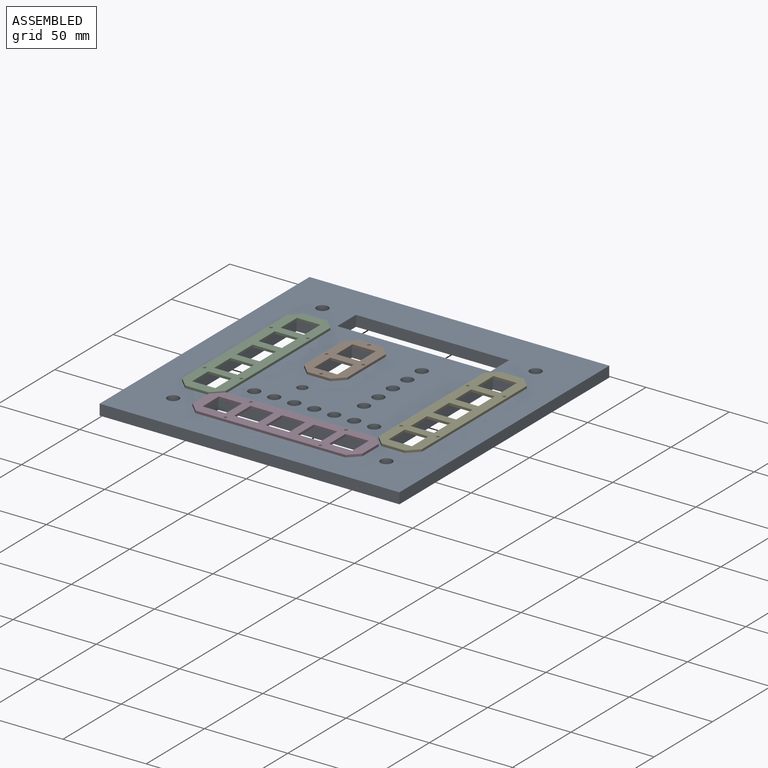
[diagram: assembled view]
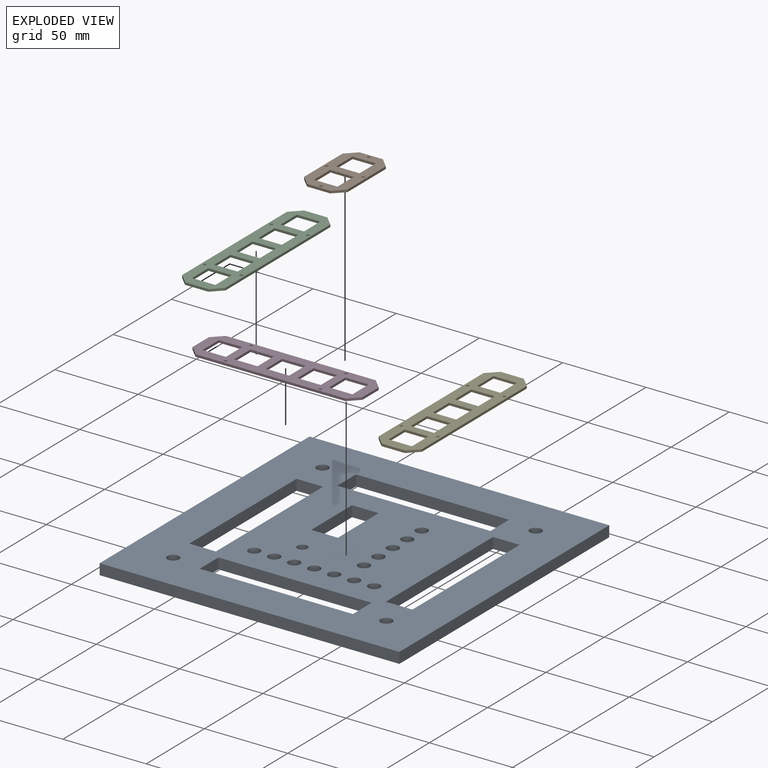
[diagram: exploded view]
GUIDED TOUR — FREECAD ASSEMBLY "Multi-MFD"

This assembly has 5 components, labeled P0..P4 below (a component is one placed body or linked part; the same part can appear more than once), held together by 0 modeled joints plus 5 derived contact edges. A joint is a constraint between two components; its type names the relative motion it leaves free:
  CONTACT — a derived adjacency edge — the two components touch in the source model (clearance under 2% of the assembly's diagonal); it is measured from the geometry, not a modeled constraint.
Axis/direction vectors are unit vectors and 'through' points are millimeter coordinates, both in the assembly's world frame.

MATES
  1. CONTACT "contact_0_1": P0 <-> P1, contact direction (0.000, 0.000, 1.000) through (-11.50, 2.00, 0.00) mm (derived from contact, not a modeled constraint)
  2. CONTACT "contact_0_2": P0 <-> P2, contact direction (0.000, 0.000, 1.000) through (-51.50, -45.50, 0.00) mm (derived from contact, not a modeled constraint)
  3. CONTACT "contact_0_3": P0 <-> P3, contact direction (0.000, 0.000, 1.000) through (45.50, -51.50, 0.00) mm (derived from contact, not a modeled constraint)
  4. CONTACT "contact_2_3": P2 <-> P3, contact direction (1.000, 0.000, 0.000) through (-51.50, -51.50, 0.00) mm (derived from contact, not a modeled constraint)
  5. CONTACT "contact_3_4": P3 <-> P4, contact direction (1.000, 0.000, 0.000) through (51.50, -51.50, 0.00) mm (derived from contact, not a modeled constraint)

ASSEMBLY ORDER
  1. P4 — the base component [order verified]
  2. P3 [order verified]
  3. P2 [order verified]
  4. P1 [order verified]
  5. P0 [order verified]
Order-tag legend:
  [order verified] — this step's position reverses a verified removal order: the component was checked to insert without passing through the ones already placed.

Of the 5 components, 5 carry a construction recipe — the FreeCAD feature program (sketches with constraints, then the solid features that consume them) that regenerates the part from scratch, quoted from this document or from the linked companion document it references; the rest are supplied as boundary geometry only. The tour below walks the components in assembly order: each is shown spotlighted twice — in the assembled view, then in the exploded view, where a leader line traces a displaced component back to its assembled socket (components that stay in place when exploded have no leader line; saturated green if recipe-attached, orange if geometry-only; every other component desaturated gray) — followed by its recipe or geometry summary and the mates that hold it.
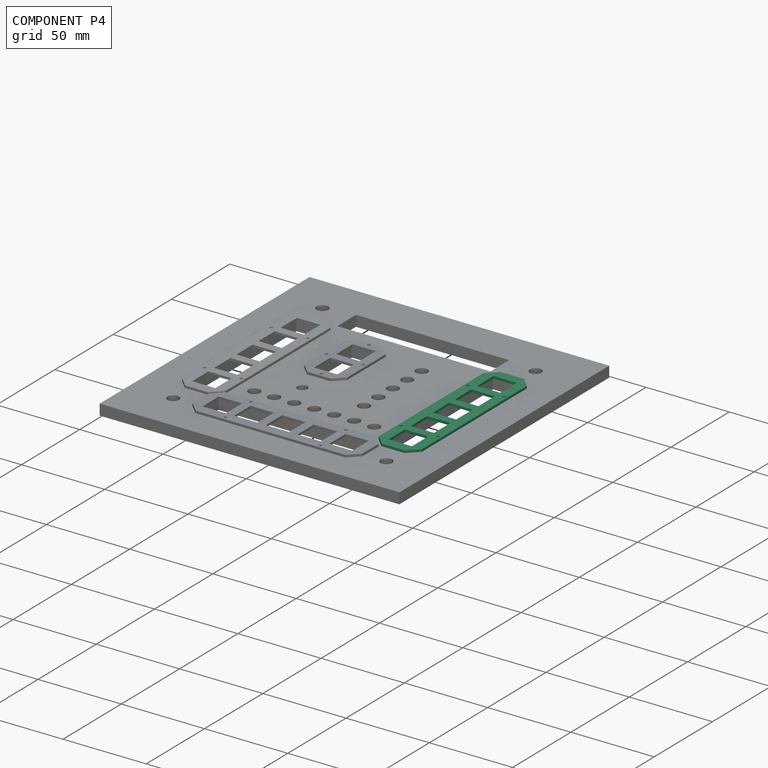
[diagram: component P4 — assembled]
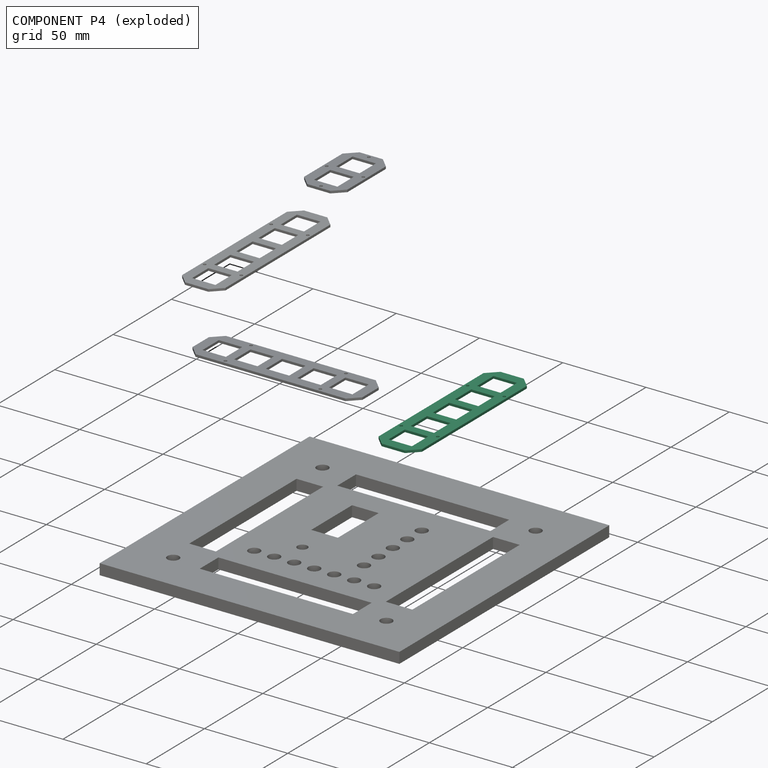
[diagram: component P4 — exploded]
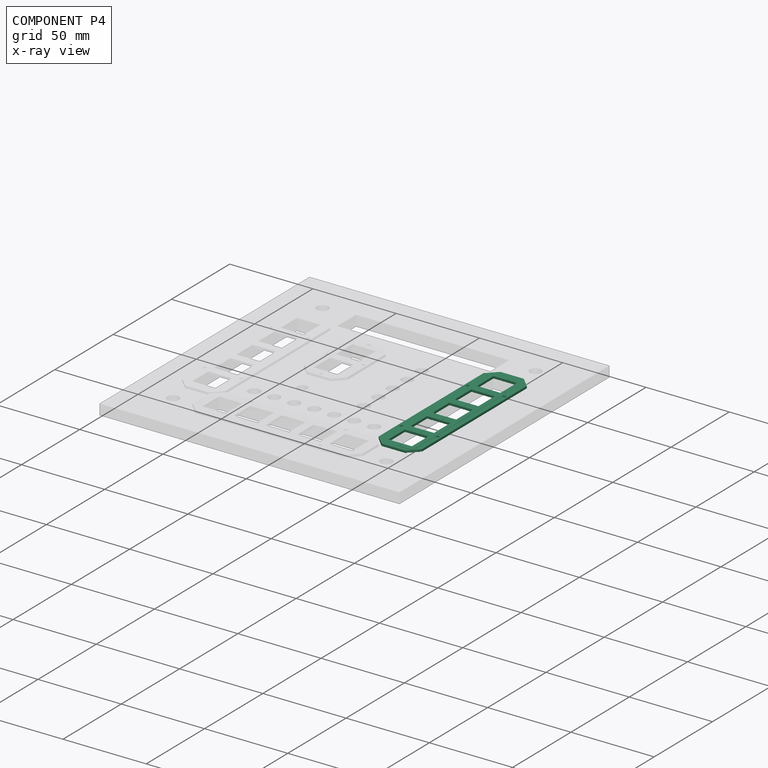
[diagram: component P4 — x-ray view]
COMPONENT P4 — same part as P2; its construction recipe is shown at P2.
Held by: resting contact with P3 (derived edge).
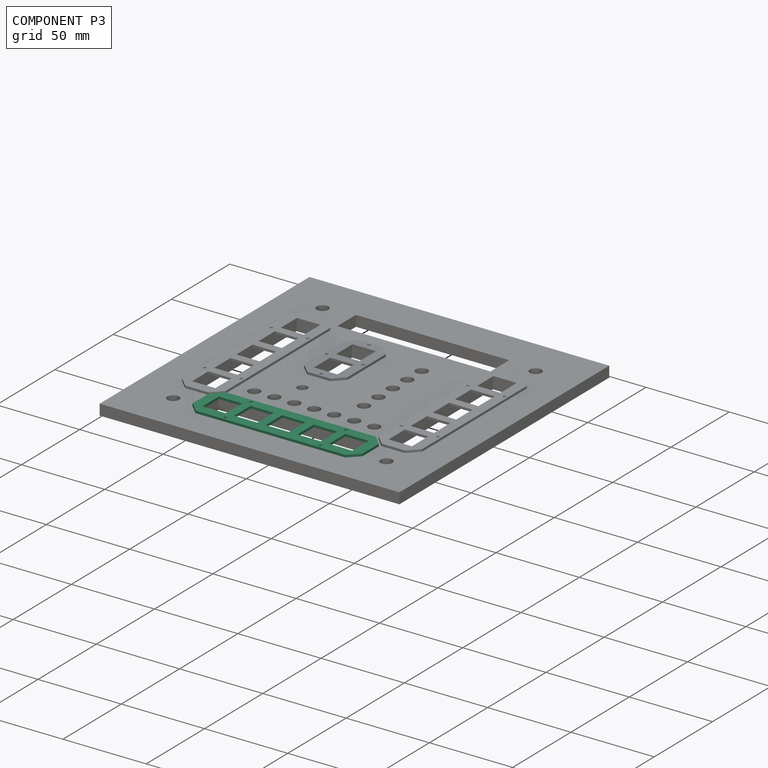
[diagram: component P3 — assembled]
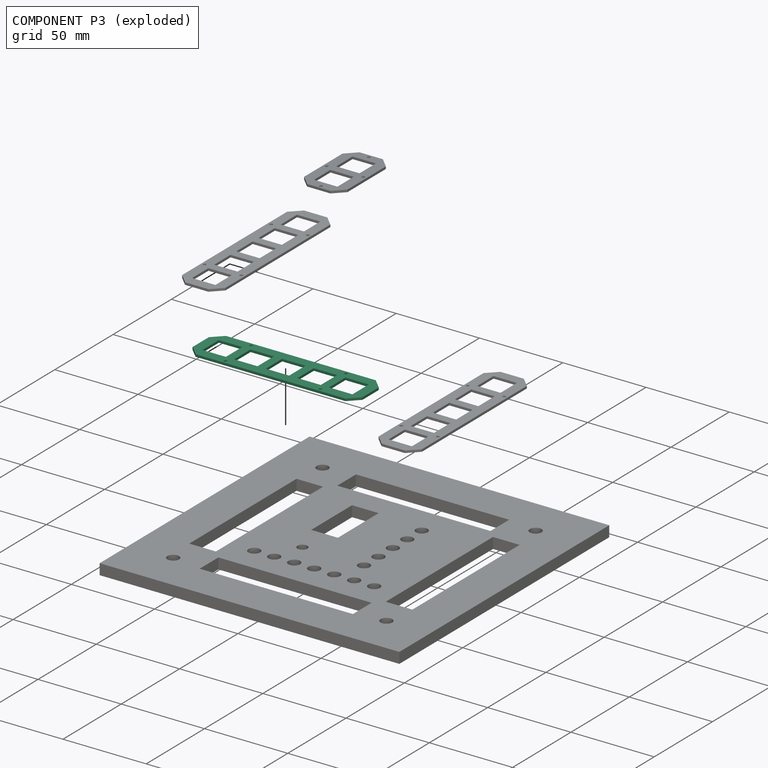
[diagram: component P3 — exploded]
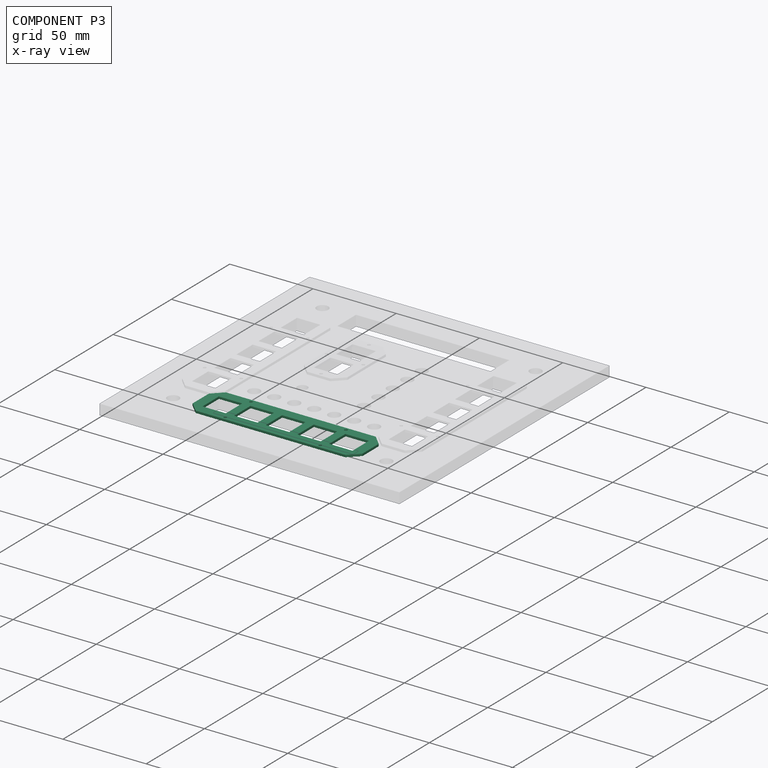
[diagram: component P3 — x-ray view]
COMPONENT P3 — same part as P2; its construction recipe is shown at P2.
Held by: resting contact with P0 (derived edge); resting contact with P2 (derived edge); resting contact with P4 (derived edge).
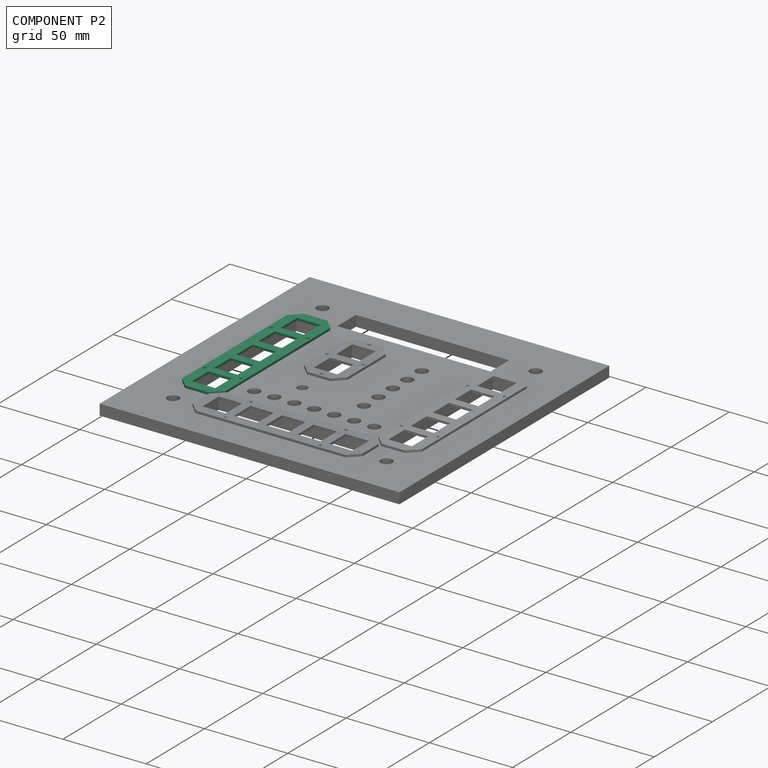
[diagram: component P2 — assembled]
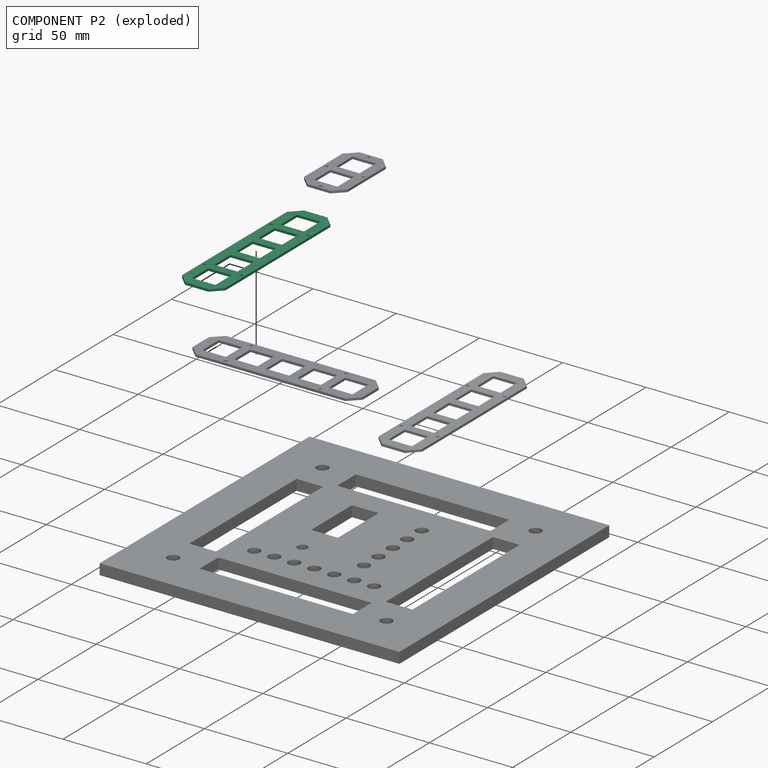
[diagram: component P2 — exploded]
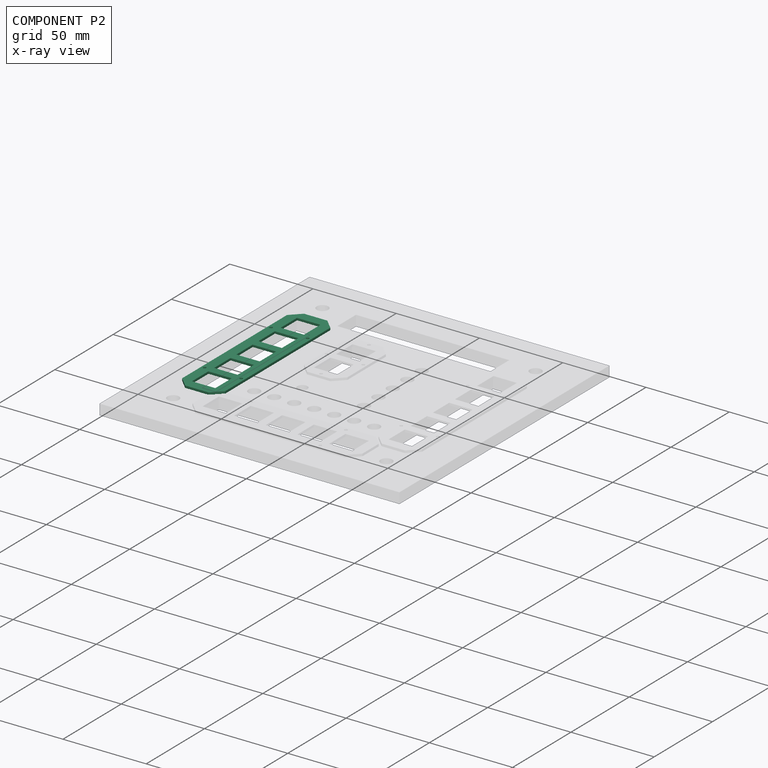
[diagram: component P2 — x-ray view]
COMPONENT P2 — recipe-attached ("ButtonPlateBody001", modeled in this document).
Held by: resting contact with P0 (derived edge); resting contact with P3 (derived edge).
Construction recipe (the document's own serialized feature program — sketch geometry with constraints, then the solid features built on it; lengths are millimeters unless a unit is written):

FEATURE [PartDesign::CoordinateSystem] LCS_0003
  AttacherType = Attacher::AttachEngine3D
  MapMode = 2
  Support = -> [X_Axis004]
FEATURE [Sketcher::SketchObject] Sketch001  label="ButtonPlateSketch"
  FullyConstrained = true
  MapMode = 5
  Support = -> [DatumPlane001]
  sketch-geometry (63):
    g0: LineSegment StartX=-45 StartY=72 StartZ=0 EndX=45 EndY=72 EndZ=0
    g1: LineSegment StartX=51 StartY=66 StartZ=0 EndX=51 EndY=52 EndZ=0
    g2: LineSegment StartX=45 StartY=46 StartZ=0 EndX=-45 EndY=46 EndZ=0
    g3: LineSegment StartX=-51 StartY=52 StartZ=0 EndX=-51 EndY=66 EndZ=0
    g4: LineSegment StartX=-51 StartY=66 StartZ=0 EndX=-45 EndY=66 EndZ=0
    g5: LineSegment StartX=-45 StartY=66 StartZ=0 EndX=-31 EndY=66 EndZ=0
    g6: LineSegment StartX=-31 StartY=66 StartZ=0 EndX=-26 EndY=66 EndZ=0
    g7: LineSegment StartX=-26 StartY=66 StartZ=0 EndX=-12 EndY=66 EndZ=0
    g8: LineSegment StartX=-12 StartY=66 StartZ=0 EndX=-7 EndY=66 EndZ=0
    g9: LineSegment StartX=-7 StartY=66 StartZ=0 EndX=7 EndY=66 EndZ=0
    g10: LineSegment StartX=7 StartY=66 StartZ=0 EndX=12 EndY=66 EndZ=0
    g11: LineSegment StartX=12 StartY=66 StartZ=0 EndX=26 EndY=66 EndZ=0
    g12: LineSegment StartX=26 StartY=66 StartZ=0 EndX=31 EndY=66 EndZ=0
    g13: LineSegment StartX=31 StartY=66 StartZ=0 EndX=45 EndY=66 EndZ=0
    g14: LineSegment StartX=45 StartY=66 StartZ=0 EndX=51 EndY=66 EndZ=0
    g15: LineSegment StartX=-51 StartY=52 StartZ=0 EndX=-45 EndY=52 EndZ=0
    g16: LineSegment StartX=-45 StartY=52 StartZ=0 EndX=-31 EndY=52 EndZ=0
    g17: LineSegment StartX=-31 StartY=52 StartZ=0 EndX=-26 EndY=52 EndZ=0
    g18: LineSegment StartX=-26 StartY=52 StartZ=0 EndX=-12 EndY=52 EndZ=0
    g19: LineSegment StartX=-12 StartY=52 StartZ=0 EndX=-7 EndY=52 EndZ=0
    g20: LineSegment StartX=-7 StartY=52 StartZ=0 EndX=7 EndY=52 EndZ=0
    g21: LineSegment StartX=7 StartY=52 StartZ=0 EndX=12 EndY=52 EndZ=0
    g22: LineSegment StartX=12 StartY=52 StartZ=0 EndX=26 EndY=52 EndZ=0
    g23: LineSegment StartX=26 StartY=52 StartZ=0 EndX=31 EndY=52 EndZ=0
    g24: LineSegment StartX=31 StartY=52 StartZ=0 EndX=45 EndY=52 EndZ=0
    g25: LineSegment StartX=45 StartY=52 StartZ=0 EndX=51 EndY=52 EndZ=0
    g26: LineSegment StartX=-45 StartY=72 StartZ=0 EndX=-45 EndY=66 EndZ=0
    g27: LineSegment StartX=-45 StartY=52 StartZ=0 EndX=-45 EndY=46 EndZ=0
    g28: LineSegment StartX=45 StartY=52 StartZ=0 EndX=45 EndY=46 EndZ=0
    g29: LineSegment StartX=45 StartY=66 StartZ=0 EndX=45 EndY=72 EndZ=0
    g30: LineSegment StartX=-45 StartY=66 StartZ=0 EndX=-31 EndY=66 EndZ=0
    g31: LineSegment StartX=-31 StartY=66 StartZ=0 EndX=-31 EndY=52 EndZ=0
    g32: LineSegment StartX=-31 StartY=52 StartZ=0 EndX=-45 EndY=52 EndZ=0
    g33: LineSegment StartX=-45 StartY=52 StartZ=0 EndX=-45 EndY=66 EndZ=0
    g34: LineSegment StartX=-26 StartY=66 StartZ=0 EndX=-12 EndY=66 EndZ=0
    g35: LineSegment StartX=-12 StartY=66 StartZ=0 EndX=-12 EndY=52 EndZ=0
    g36: LineSegment StartX=-12 StartY=52 StartZ=0 EndX=-26 EndY=52 EndZ=0
    g37: LineSegment StartX=-26 StartY=52 StartZ=0 EndX=-26 EndY=66 EndZ=0
    g38: LineSegment StartX=-7 StartY=66 StartZ=0 EndX=7 EndY=66 EndZ=0
    g39: LineSegment StartX=7 StartY=66 StartZ=0 EndX=7 EndY=52 EndZ=0
    g40: LineSegment StartX=7 StartY=52 StartZ=0 EndX=-7 EndY=52 EndZ=0
    g41: LineSegment StartX=-7 StartY=52 StartZ=0 EndX=-7 EndY=66 EndZ=0
    g42: LineSegment StartX=12 StartY=66 StartZ=0 EndX=26 EndY=66 EndZ=0
    g43: LineSegment StartX=26 StartY=66 StartZ=0 EndX=26 EndY=52 EndZ=0
    g44: LineSegment StartX=26 StartY=52 StartZ=0 EndX=12 EndY=52 EndZ=0
    g45: LineSegment StartX=12 StartY=52 StartZ=0 EndX=12 EndY=66 EndZ=0
    g46: LineSegment StartX=31 StartY=66 StartZ=0 EndX=45 EndY=66 EndZ=0
    g47: LineSegment StartX=45 StartY=66 StartZ=0 EndX=45 EndY=52 EndZ=0
    g48: LineSegment StartX=45 StartY=52 StartZ=0 EndX=31 EndY=52 EndZ=0
    g49: LineSegment StartX=31 StartY=52 StartZ=0 EndX=31 EndY=66 EndZ=0
    g50: LineSegment StartX=-45 StartY=72 StartZ=0 EndX=-51 EndY=66 EndZ=0
    g51: LineSegment StartX=-51 StartY=52 StartZ=0 EndX=-45 EndY=46 EndZ=0
    g52: LineSegment StartX=45 StartY=46 StartZ=0 EndX=51 EndY=52 EndZ=0
    g53: LineSegment StartX=51 StartY=66 StartZ=0 EndX=45 EndY=72 EndZ=0
    g54: Circle CenterX=-28.5 CenterY=48 CenterZ=0 NormalX=0 NormalY=0 NormalZ=1 AngleXU=0 Radius=0.9
    g55: Circle CenterX=-28.5 CenterY=70 CenterZ=0 NormalX=0 NormalY=0 NormalZ=1 AngleXU=0 Radius=0.9
    g56: Circle CenterX=28.5 CenterY=70 CenterZ=0 NormalX=0 NormalY=0 NormalZ=1 AngleXU=0 Radius=0.9
    g57: Circle CenterX=28.5 CenterY=48 CenterZ=0 NormalX=0 NormalY=0 NormalZ=1 AngleXU=0 Radius=0.9
    g58: LineSegment StartX=-45 StartY=48 StartZ=0 EndX=45 EndY=48 EndZ=0
    g59: LineSegment StartX=-45 StartY=70 StartZ=0 EndX=45 EndY=70 EndZ=0
    g60: LineSegment StartX=-28.5 StartY=72 StartZ=0 EndX=-28.5 EndY=46 EndZ=0
    g61: LineSegment StartX=28.5 StartY=72 StartZ=0 EndX=28.5 EndY=46 EndZ=0
    g62: LineSegment StartX=38 StartY=66 StartZ=0 EndX=38 EndY=52 EndZ=0
  constraints (174):
    c: Horizontal(g0)
    c: Vertical(g1)
    c: Vertical(g3)
    c: Horizontal(g4)
    c: Coincident(g4,g5)
    c: Horizontal(g5)
    c: Coincident(g5,g6)
    c: Horizontal(g6)
    c: Coincident(g6,g7)
    c: Horizontal(g7)
    c: Coincident(g7,g8)
    c: Horizontal(g8)
    c: Coincident(g8,g9)
    c: Horizontal(g9)
    c: Coincident(g9,g10)
    c: Horizontal(g10)
    c: Coincident(g10,g11)
    c: Horizontal(g11)
    c: Coincident(g11,g12)
    c: Horizontal(g12)
    c: Coincident(g12,g13)
    c: Horizontal(g13)
    c: Coincident(g13,g14)
    c: Horizontal(g14)
    c: Equal(g5,g7)
    c: Equal(g7,g9)
    c: Equal(g9,g11)
    c: Equal(g11,g13)
    c: Equal(g6,g8)
    c: Equal(g8,g10)
    c: Equal(g10,g12)
    c: Horizontal(g15)
    c: Coincident(g15,g16)
    c: Horizontal(g16)
    c: Coincident(g16,g17)
    c: Horizontal(g17)
    c: Coincident(g17,g18)
    c: Horizontal(g18)
    c: Coincident(g18,g19)
    c: Horizontal(g19)
    c: Coincident(g19,g20)
    c: Horizontal(g20)
    c: Coincident(g20,g21)
    c: Horizontal(g21)
    c: Coincident(g21,g22)
    c: Horizontal(g22)
    c: Coincident(g22,g23)
    c: Horizontal(g23)
    c: Coincident(g23,g24)
    c: Horizontal(g24)
    c: Coincident(g24,g25)
    c: Horizontal(g25)
    c: Equal(g16,g18)
    c: Equal(g18,g20)
    c: Equal(g20,g22)
    c: Equal(g22,g24)
    c: Equal(g17,g19)
    c: Equal(g19,g21)
    c: Equal(g21,g23)
    c: Equal(g6,g17) = 5
    c: Equal(g5,g16) = 14
    c: Vertical(g26)
    c: Vertical(g27)
    c: Coincident(g26,g4)
    c: Coincident(g27,g15)
    c: Coincident(g28,g24)
    c: Vertical(g28)
    c: Coincident(g29,g13)
    c: Vertical(g29)
    c: DistanceX(g6,g6) = 5
    c: DistanceY(g15,g4) = 14
    c: DistanceY(g29,g29) = 6
    c: Equal(g4,g26)
    c: Equal(g25,g28)
    c: Equal(g14,g29)
    c: Equal(g15,g4)
    c: Coincident(g30,g31)
    c: Coincident(g31,g32)
    c: Coincident(g32,g33)
    c: Coincident(g33,g30)
    c: Horizontal(g30)
    c: Horizontal(g32)
    c: Vertical(g31)
    c: Vertical(g33)
    c: Coincident(g30,g4)
    c: Coincident(g31,g16)
    c: Coincident(g34,g35)
    c: Coincident(g35,g36)
    c: Coincident(g36,g37)
    c: Coincident(g37,g34)
    c: Horizontal(g34)
    c: Horizontal(g36)
    c: Vertical(g35)
    c: Vertical(g37)
    c: Coincident(g34,g6)
    c: Coincident(g35,g18)
    c: Coincident(g38,g39)
    c: Coincident(g39,g40)
    c: Coincident(g40,g41)
    c: Coincident(g41,g38)
    c: Horizontal(g38)
    c: Horizontal(g40)
    c: Vertical(g39)
    c: Vertical(g41)
    c: Coincident(g38,g8)
    c: Coincident(g39,g20)
    c: Coincident(g42,g43)
    c: Coincident(g43,g44)
    c: Coincident(g44,g45)
    c: Coincident(g45,g42)
    c: Horizontal(g42)
    c: Horizontal(g44)
    c: Vertical(g43)
    c: Vertical(g45)
    c: Coincident(g42,g10)
    c: Coincident(g43,g22)
    c: Coincident(g46,g47)
    c: Coincident(g47,g48)
    c: Coincident(g48,g49)
    c: Coincident(g49,g46)
    c: Horizontal(g46)
    c: Horizontal(g48)
    c: Vertical(g47)
    c: Vertical(g49)
    c: Coincident(g46,g12)
    c: Coincident(g47,g24)
    c: Equal(g32,g33)
    c: Coincident(g1,g25)
    c: Coincident(g2,g28)
    c: Coincident(g1,g14)
    c: Coincident(g0,g29)
    c: Coincident(g0,g26)
    c: Coincident(g3,g4)
    c: Coincident(g3,g15)
    c: Coincident(g2,g27)
    c: Coincident(g50,g0)
    c: Coincident(g51,g3)
    c: Coincident(g51,g2)
    c: Coincident(g52,g2)
    c: Coincident(g52,g1)
    c: Coincident(g53,g1)
    c: Coincident(g53,g0)
    c: Coincident(g50,g3)
    c: Symmetric(g2,g2,g-2)
    c: DistanceY(g-1,g0) = 72
    c: PointOnObject(g58,g27)
    c: PointOnObject(g58,g28)
    c: Horizontal(g58)
    c: PointOnObject(g59,g26)
    c: PointOnObject(g59,g29)
    c: Horizontal(g59)
    c: PointOnObject(g55,g59)
    c: PointOnObject(g56,g59)
    c: PointOnObject(g54,g58)
    c: DistanceY(g58,g47) = 4
    c: Diameter(g54) = 1.8
    c: Diameter(g57) = 1.8
    c: Diameter(g56) = 1.8
    c: Diameter(g55) = 1.8
    c: DistanceY(g46,g59) = 4
    c: Symmetric(g54,g57,g-2)
    c: PointOnObject(g60,g0)
    c: PointOnObject(g60,g2)
    c: Vertical(g60)
    c: PointOnObject(g61,g0)
    c: Vertical(g61)
    c: PointOnObject(g57,g61)
    c: PointOnObject(g55,g60)
    c: PointOnObject(g56,g61)
    c: Symmetric(g60,g61,g-2)
    c: DistanceX(g60,g-1) = 28.5
    c: PointOnObject(g62,g46)
    c: PointOnObject(g62,g48)
    c: Symmetric(g46,g46,g62)
FEATURE [PartDesign::FeatureBase] BaseFeature001
  BaseFeature = -> DatumPlane001
FEATURE [PartDesign::Pad] Pad001  label="FiveButtonPlatePad"
  BaseFeature = -> BaseFeature001
  Direction = (1,1,1)
  Length = 1.4
  Length2 = 100
  Profile = -> Sketch001
  Type = 0
FEATURE [PartDesign::Body] ButtonPlateBody
  BaseFeature = -> DatumPlane001
  Group = -> [BaseFeature001,LCS_0003,Sketch001,Pad001]
  Origin = -> Origin004
  Tip = -> Pad001
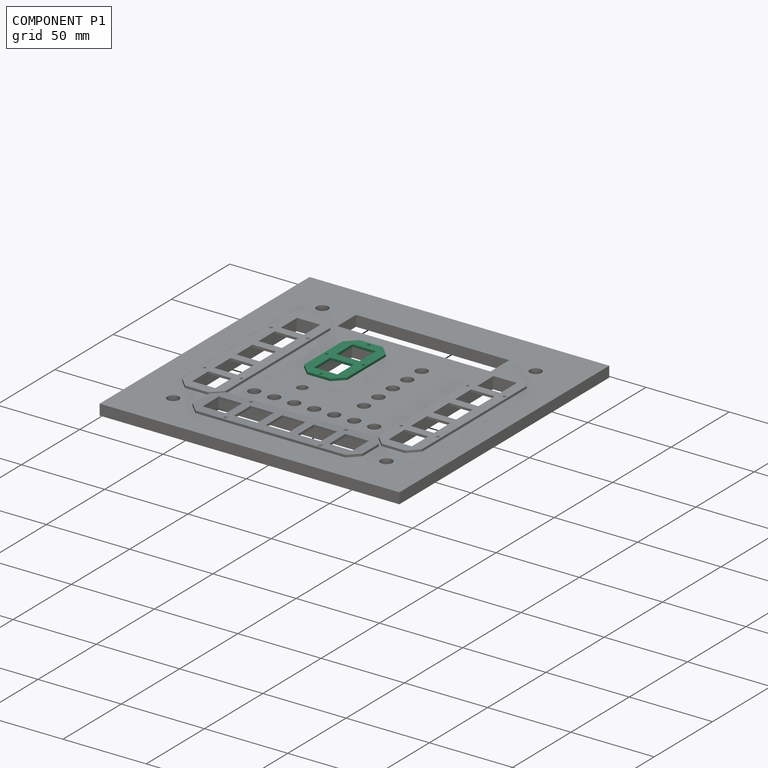
[diagram: component P1 — assembled]
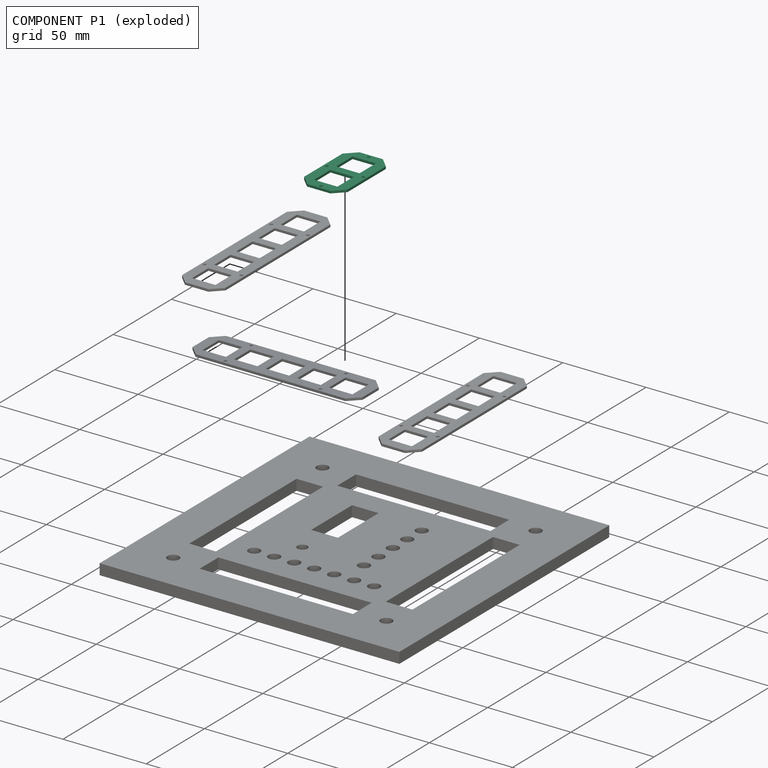
[diagram: component P1 — exploded]
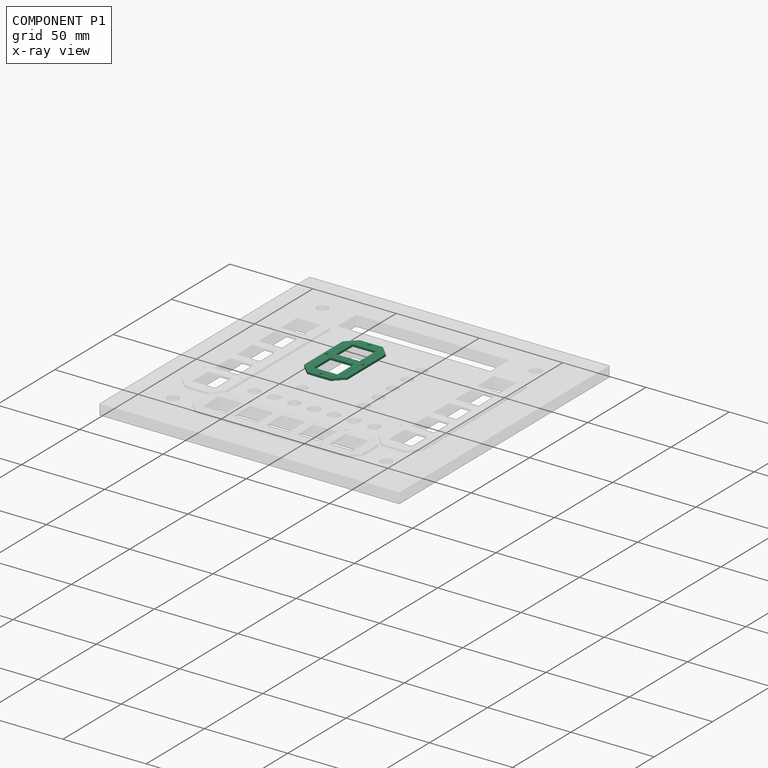
[diagram: component P1 — x-ray view]
COMPONENT P1 — recipe-attached ("ArmingPlate", modeled in this document).
Held by: resting contact with P0 (derived edge).
Construction recipe (the document's own serialized feature program — sketch geometry with constraints, then the solid features built on it; lengths are millimeters unless a unit is written):

FEATURE [Sketcher::SketchObject] Sketch003
  FullyConstrained = true
  MapMode = 5
  Support = -> [DatumPlane001]
  sketch-geometry (36):
    g0: LineSegment StartX=-26 StartY=41.5 StartZ=0 EndX=-26 EndY=35.5 EndZ=0
    g1: LineSegment StartX=-26 StartY=35.5 StartZ=0 EndX=-26 EndY=21.5 EndZ=0
    g2: LineSegment StartX=-26 StartY=21.5 StartZ=0 EndX=-26 EndY=16.5 EndZ=0
    g3: LineSegment StartX=-26 StartY=16.5 StartZ=0 EndX=-26 EndY=2.5 EndZ=0
    g4: LineSegment StartX=-26 StartY=2.5 StartZ=0 EndX=-26 EndY=-3.5 EndZ=0
    g5: LineSegment StartX=-12 StartY=41.5 StartZ=0 EndX=-12 EndY=35.5 EndZ=0
    g6: LineSegment StartX=-12 StartY=35.5 StartZ=0 EndX=-12 EndY=21.5 EndZ=0
    g7: LineSegment StartX=-12 StartY=21.5 StartZ=0 EndX=-12 EndY=16.5 EndZ=0
    g8: LineSegment StartX=-12 StartY=16.5 StartZ=0 EndX=-12 EndY=2.5 EndZ=0
    g9: LineSegment StartX=-12 StartY=2.5 StartZ=0 EndX=-12 EndY=-3.5 EndZ=0
    g10: LineSegment StartX=-26 StartY=41.5 StartZ=0 EndX=-12 EndY=41.5 EndZ=0
    g11: LineSegment StartX=-6 StartY=35.5 StartZ=0 EndX=-6 EndY=2.5 EndZ=0
    g12: LineSegment StartX=-12 StartY=-3.5 StartZ=0 EndX=-26 EndY=-3.5 EndZ=0
    g13: LineSegment StartX=-32 StartY=2.5 StartZ=0 EndX=-32 EndY=35.5 EndZ=0
    g14: LineSegment StartX=-26 StartY=35.5 StartZ=0 EndX=-32 EndY=35.5 EndZ=0
    g15: LineSegment StartX=-12 StartY=35.5 StartZ=0 EndX=-6 EndY=35.5 EndZ=0
    g16: LineSegment StartX=-12 StartY=2.5 StartZ=0 EndX=-6 EndY=2.5 EndZ=0
    g17: LineSegment StartX=-26 StartY=2.5 StartZ=0 EndX=-32 EndY=2.5 EndZ=0
    g18: LineSegment StartX=-26 StartY=41.5 StartZ=0 EndX=-32 EndY=35.5 EndZ=0
    g19: LineSegment StartX=-12 StartY=41.5 StartZ=0 EndX=-6 EndY=35.5 EndZ=0
    g20: LineSegment StartX=-32 StartY=2.5 StartZ=0 EndX=-26 EndY=-3.5 EndZ=0
    g21: LineSegment StartX=-12 StartY=-3.5 StartZ=0 EndX=-6 EndY=2.5 EndZ=0
    g22: LineSegment StartX=-12 StartY=16.5 StartZ=0 EndX=-26 EndY=16.5 EndZ=0
    g23: LineSegment StartX=-26 StartY=16.5 StartZ=0 EndX=-26 EndY=2.5 EndZ=0
    g24: LineSegment StartX=-26 StartY=2.5 StartZ=0 EndX=-12 EndY=2.5 EndZ=0
    g25: LineSegment StartX=-12 StartY=2.5 StartZ=0 EndX=-12 EndY=16.5 EndZ=0
    g26: LineSegment StartX=-26 StartY=21.5 StartZ=0 EndX=-12 EndY=21.5 EndZ=0
    g27: LineSegment StartX=-12 StartY=21.5 StartZ=0 EndX=-12 EndY=35.5 EndZ=0
    g28: LineSegment StartX=-12 StartY=35.5 StartZ=0 EndX=-26 EndY=35.5 EndZ=0
    g29: LineSegment StartX=-26 StartY=35.5 StartZ=0 EndX=-26 EndY=21.5 EndZ=0
    g30: Circle CenterX=-19 CenterY=-1.5 CenterZ=0 NormalX=0 NormalY=0 NormalZ=1 AngleXU=0 Radius=0.9
    g31: Circle CenterX=-19 CenterY=39.5 CenterZ=0 NormalX=0 NormalY=0 NormalZ=1 AngleXU=0 Radius=0.9
    g32: Circle CenterX=-30 CenterY=19 CenterZ=0 NormalX=0 NormalY=0 NormalZ=1 AngleXU=0 Radius=0.9
    g33: Circle CenterX=-8 CenterY=19 CenterZ=0 NormalX=0 NormalY=0 NormalZ=1 AngleXU=0 Radius=0.9
    g34: LineSegment StartX=-19 StartY=41.5 StartZ=0 EndX=-19 EndY=-3.5 EndZ=0
    g35: LineSegment StartX=-32 StartY=19 StartZ=0 EndX=-6 EndY=19 EndZ=0
  constraints (98):
    c: Vertical(g0)
    c: Coincident(g0,g1)
    c: Vertical(g1)
    c: Coincident(g1,g2)
    c: Vertical(g2)
    c: Coincident(g2,g3)
    c: Vertical(g3)
    c: Coincident(g3,g4)
    c: Vertical(g4)
    c: Vertical(g5)
    c: Coincident(g5,g6)
    c: Vertical(g6)
    c: Coincident(g6,g7)
    c: Vertical(g7)
    c: Coincident(g7,g8)
    c: Vertical(g8)
    c: Coincident(g9,g8)
    c: Vertical(g9)
    c: Horizontal(g10)
    c: Horizontal(g12)
    c: Vertical(g11)
    c: Vertical(g13)
    c: Equal(g1,g6)
    c: Equal(g6,g8)
    c: Equal(g8,g3)
    c: Equal(g2,g7)
    c: Equal(g4,g9)
    c: Equal(g9,g5)
    c: Coincident(g14,g0)
    c: Horizontal(g14)
    c: Coincident(g15,g5)
    c: Horizontal(g15)
    c: Coincident(g16,g8)
    c: Horizontal(g16)
    c: Coincident(g17,g3)
    c: Horizontal(g17)
    c: Equal(g15,g14)
    c: Equal(g14,g0)
    c: DistanceX(g14,g14) = 6
    c: DistanceY(g1,g1) = 14
    c: Coincident(g10,g0)
    c: Coincident(g13,g14)
    c: Coincident(g18,g10)
    c: Coincident(g18,g13)
    c: Coincident(g10,g5)
    c: Coincident(g19,g10)
    c: Coincident(g19,g11)
    c: Coincident(g11,g16)
    c: Coincident(g12,g9)
    c: Coincident(g12,g4)
    c: Coincident(g13,g17)
    c: Coincident(g20,g13)
    c: Coincident(g20,g12)
    c: Coincident(g21,g12)
    c: Coincident(g21,g11)
    c: Coincident(g22,g23)
    c: Coincident(g23,g24)
    c: Coincident(g24,g25)
    c: Coincident(g25,g22)
    c: Horizontal(g22)
    c: Horizontal(g24)
    c: Vertical(g23)
    c: Vertical(g25)
    c: Coincident(g22,g7)
    c: Coincident(g23,g3)
    c: Coincident(g26,g27)
    c: Coincident(g27,g28)
    c: Coincident(g28,g29)
    c: Coincident(g29,g26)
    c: Horizontal(g26)
    c: Horizontal(g28)
    c: Vertical(g27)
    c: Vertical(g29)
    c: Coincident(g26,g1)
    c: Coincident(g27,g5)
    c: DistanceY(g7,g7) = 5
    c: DistanceX(g10,g10) = 14
    c: DistanceX(g11,g-1) = 6
    c: Diameter(g31) = 1.8
    c: Diameter(g32) = 1.8
    c: Diameter(g30) = 1.8
    c: Diameter(g33) = 1.8
    c: PointOnObject(g34,g10)
    c: PointOnObject(g35,g13)
    c: PointOnObject(g35,g11)
    c: Symmetric(g13,g13,g35)
    c: Symmetric(g10,g10,g34)
    c: PointOnObject(g33,g35)
    c: PointOnObject(g32,g35)
    c: PointOnObject(g31,g34)
    c: PointOnObject(g30,g34)
    c: DistanceY(g34,g30) = 2
    c: DistanceX(g33,g35) = 2
    c: DistanceX(g35,g32) = 2
    c: DistanceY(g31,g34) = 2
    c: Coincident(g11,g15)
    c: PointOnObject(g34,g12)
    c: DistanceY(g-1,g35) = 19
FEATURE [PartDesign::FeatureBase] BaseFeature002
  BaseFeature = -> DatumPlane001
FEATURE [PartDesign::Pad] Pad002  label="TwoButtonPlatePad"
  BaseFeature = -> BaseFeature002
  Direction = (1,1,1)
  Length = 1.4
  Length2 = 100
  Profile = -> Sketch003
  Type = 0
FEATURE [PartDesign::Body] Body  label="ArmingPlate"
  BaseFeature = -> DatumPlane001
  Group = -> [BaseFeature002,Sketch003,Pad002]
  Origin = -> Origin
  Tip = -> Pad002
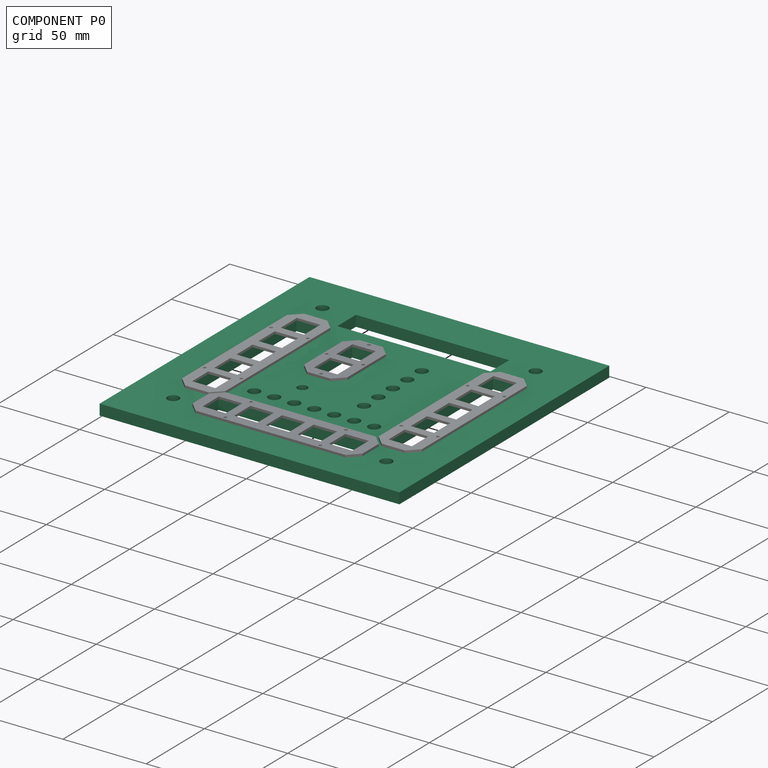
[diagram: component P0 — assembled]
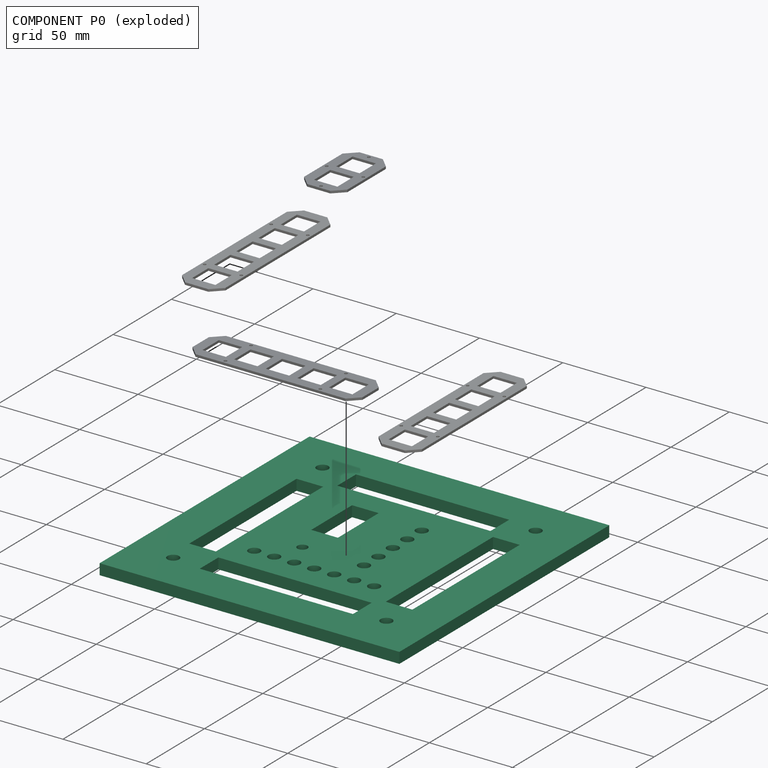
[diagram: component P0 — exploded]
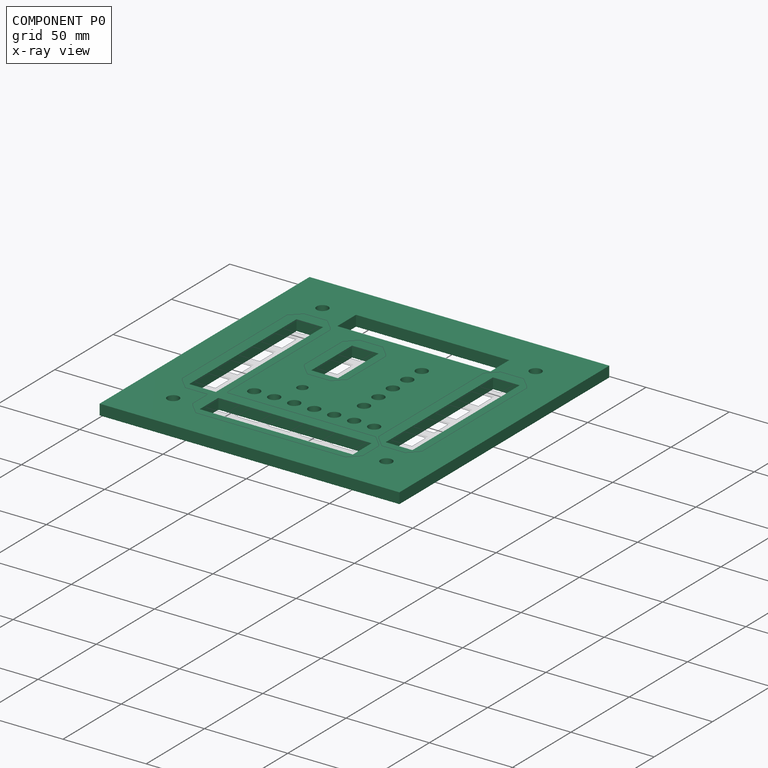
[diagram: component P0 — x-ray view]
COMPONENT P0 — recipe-attached ("BasePad", modeled in this document).
Held by: resting contact with P1 (derived edge); resting contact with P2 (derived edge); resting contact with P3 (derived edge).
Construction recipe (the document's own serialized feature program — sketch geometry with constraints, then the solid features built on it; lengths are millimeters unless a unit is written):

FEATURE [PartDesign::CoordinateSystem] LCS_0001
  AttacherType = Attacher::AttachEngine3D
  MapMode = 2
  Support = -> [X_Axis002]
FEATURE [Sketcher::SketchObject] Sketch  label="BaseSketch"
  FullyConstrained = true
  MapMode = 5
  Support = -> [DatumPlane001]
  sketch-geometry (8):
    g0: LineSegment StartX=-90 StartY=90 StartZ=0 EndX=90 EndY=90 EndZ=0
    g1: LineSegment StartX=90 StartY=90 StartZ=0 EndX=90 EndY=-90 EndZ=0
    g2: LineSegment StartX=90 StartY=-90 StartZ=0 EndX=-90 EndY=-90 EndZ=0
    g3: LineSegment StartX=-90 StartY=-90 StartZ=0 EndX=-90 EndY=90 EndZ=0
    g4: LineSegment StartX=-77.8 StartY=77.8 StartZ=0 EndX=77.8 EndY=77.8 EndZ=0
    g5: LineSegment StartX=77.8 StartY=77.8 StartZ=0 EndX=77.8 EndY=-77.8 EndZ=0
    g6: LineSegment StartX=77.8 StartY=-77.8 StartZ=0 EndX=-77.8 EndY=-77.8 EndZ=0
    g7: LineSegment StartX=-77.8 StartY=-77.8 StartZ=0 EndX=-77.8 EndY=77.8 EndZ=0
  constraints (23):
    c: Coincident(g0,g1)
    c: Coincident(g1,g2)
    c: Coincident(g2,g3)
    c: Coincident(g3,g0)
    c: Horizontal(g0)
    c: Horizontal(g2)
    c: Vertical(g1)
    c: Vertical(g3)
    c: DistanceX(g0,g0) = 180
    c: DistanceY(g1,g1) = 180
    c: Symmetric(g0,g1,g-1)
    c: Coincident(g4,g5)
    c: Coincident(g5,g6)
    c: Coincident(g6,g7)
    c: Coincident(g7,g4)
    c: Horizontal(g4)
    c: Horizontal(g6)
    c: Vertical(g5)
    c: Vertical(g7)
    c: DistanceY(g4,g0) = 12.2
    c: DistanceX(g0,g4) = 12.2
    c: DistanceX(g5,g1) = 12.2
    c: DistanceY(g1,g5) = 12.2
FEATURE [Sketcher::SketchObject] Sketch002
  FullyConstrained = true
  MapMode = 5
  Support = -> [DatumPlane001]
  sketch-geometry (6):
    g0: LineSegment StartX=-46 StartY=67 StartZ=0 EndX=46 EndY=67 EndZ=0
    g1: LineSegment StartX=46 StartY=67 StartZ=0 EndX=46 EndY=51 EndZ=0
    g2: LineSegment StartX=46 StartY=51 StartZ=0 EndX=-46 EndY=51 EndZ=0
    g3: LineSegment StartX=-46 StartY=51 StartZ=0 EndX=-46 EndY=67 EndZ=0
    g4: LineSegment StartX=46 StartY=64 StartZ=0 EndX=64 EndY=64 EndZ=0
    g5: Circle CenterX=64 CenterY=64 CenterZ=0 NormalX=0 NormalY=0 NormalZ=1 AngleXU=0 Radius=3.5
  constraints (17):
    c: Coincident(g0,g1)
    c: Coincident(g1,g2)
    c: Coincident(g2,g3)
    c: Coincident(g3,g0)
    c: Horizontal(g0)
    c: Vertical(g1)
    c: Vertical(g3)
    c: DistanceY(g1,g1) = 16
    c: DistanceX(g0,g0) = 92
    c: Symmetric(g1,g2,g-2)
    c: DistanceY(g-1,g0) = 67
    c: PointOnObject(g4,g1)
    c: DistanceX(g4,g4) = 18
    c: Coincident(g5,g4)
    c: Diameter(g5) = 7
    c: DistanceY(g1,g4) = 13
    c: Horizontal(g4)
FEATURE [Sketcher::SketchObject] Sketch004
  FullyConstrained = true
  MapMode = 5
  Support = -> [DatumPlane001]
  sketch-geometry (29):
    g0: LineSegment StartX=-27 StartY=36.5 StartZ=0 EndX=-11 EndY=36.5 EndZ=0
    g1: LineSegment StartX=-11 StartY=36.5 StartZ=0 EndX=-11 EndY=1.5 EndZ=0
    g2: LineSegment StartX=-11 StartY=1.5 StartZ=0 EndX=-27 EndY=1.5 EndZ=0
    g3: LineSegment StartX=-27 StartY=1.5 StartZ=0 EndX=-27 EndY=36.5 EndZ=0
    g4: LineSegment StartX=-36 StartY=-34.5 StartZ=0 EndX=-24 EndY=-34.5 EndZ=0
    g5: LineSegment StartX=-24 StartY=-34.5 StartZ=0 EndX=-12 EndY=-34.5 EndZ=0
    g6: LineSegment StartX=-12 StartY=-34.5 StartZ=0 EndX=0 EndY=-34.5 EndZ=0
    g7: LineSegment StartX=0 StartY=-34.5 StartZ=0 EndX=12 EndY=-34.5 EndZ=0
    g8: LineSegment StartX=12 StartY=-34.5 StartZ=0 EndX=24 EndY=-34.5 EndZ=0
    g9: LineSegment StartX=24 StartY=-34.5 StartZ=0 EndX=36 EndY=-34.5 EndZ=0
    g10: Circle CenterX=-36 CenterY=-34.5 CenterZ=0 NormalX=0 NormalY=0 NormalZ=1 AngleXU=0 Radius=3.5
    g11: Circle CenterX=-24 CenterY=-34.5 CenterZ=0 NormalX=0 NormalY=0 NormalZ=1 AngleXU=0 Radius=3.5
    g12: Circle CenterX=-12 CenterY=-34.5 CenterZ=0 NormalX=0 NormalY=0 NormalZ=1 AngleXU=0 Radius=3.5
    g13: Circle CenterX=0 CenterY=-34.5 CenterZ=0 NormalX=0 NormalY=0 NormalZ=1 AngleXU=0 Radius=3.5
    g14: Circle CenterX=12 CenterY=-34.5 CenterZ=0 NormalX=0 NormalY=0 NormalZ=1 AngleXU=0 Radius=3.5
    g15: Circle CenterX=24 CenterY=-34.5 CenterZ=0 NormalX=0 NormalY=0 NormalZ=1 AngleXU=0 Radius=3.5
    g16: Circle CenterX=36 CenterY=-34.5 CenterZ=0 NormalX=0 NormalY=0 NormalZ=1 AngleXU=0 Radius=3.5
    g17: LineSegment StartX=18 StartY=32 StartZ=0 EndX=18 EndY=19.625 EndZ=0
    g18: LineSegment StartX=18 StartY=19.625 StartZ=0 EndX=18 EndY=7.25 EndZ=0
    g19: LineSegment StartX=18 StartY=7.25 StartZ=0 EndX=18 EndY=-5.125 EndZ=0
    g20: LineSegment StartX=18 StartY=-5.125 StartZ=0 EndX=18 EndY=-17.5 EndZ=0
    g21: Circle CenterX=18 CenterY=-17.5 CenterZ=0 NormalX=0 NormalY=0 NormalZ=1 AngleXU=0 Radius=3.5
    g22: Circle CenterX=18 CenterY=-5.125 CenterZ=0 NormalX=0 NormalY=0 NormalZ=1 AngleXU=0 Radius=3.5
    g23: Circle CenterX=18 CenterY=7.25 CenterZ=0 NormalX=0 NormalY=0 NormalZ=1 AngleXU=0 Radius=3.5
    g24: Circle CenterX=18 CenterY=19.625 CenterZ=0 NormalX=0 NormalY=0 NormalZ=1 AngleXU=0 Radius=3.5
    g25: Circle CenterX=18 CenterY=32 CenterZ=0 NormalX=0 NormalY=0 NormalZ=1 AngleXU=0 Radius=3.5
    g26: LineSegment StartX=-19 StartY=1.5 StartZ=0 EndX=-19 EndY=-17.5 EndZ=0
    g27: Circle CenterX=-19 CenterY=-17.5 CenterZ=0 NormalX=0 NormalY=0 NormalZ=1 AngleXU=0 Radius=3
    g28: LineSegment StartX=-27 StartY=32 StartZ=0 EndX=-11 EndY=32 EndZ=0
  constraints (76):
    c: Coincident(g0,g1)
    c: Coincident(g1,g2)
    c: Coincident(g2,g3)
    c: Coincident(g3,g0)
    c: Horizontal(g0)
    c: Horizontal(g2)
    c: Vertical(g1)
    c: Vertical(g3)
    c: DistanceX(g0,g0) = 16
    c: DistanceY(g1,g1) = 35
    c: Horizontal(g4)
    c: Coincident(g5,g4)
    c: Horizontal(g5)
    c: Coincident(g6,g5)
    c: Horizontal(g6)
    c: Coincident(g7,g6)
    c: Horizontal(g7)
    c: Coincident(g8,g7)
    c: Horizontal(g8)
    c: Coincident(g9,g8)
    c: Horizontal(g9)
    c: Equal(g4,g5)
    c: Equal(g5,g6)
    c: Equal(g6,g7)
    c: Equal(g7,g8)
    c: Equal(g8,g9)
    c: DistanceX(g4,g4) = 12
    c: Diameter(g10) = 7
    c: Coincident(g11,g4)
    c: Coincident(g12,g5)
    c: Coincident(g13,g6)
    c: Coincident(g14,g7)
    c: Coincident(g15,g8)
    c: Coincident(g16,g9)
    c: Diameter(g11) = 7
    c: Diameter(g12) = 7
    c: Diameter(g13) = 7
    c: Diameter(g14) = 7
    c: Diameter(g15) = 7
    c: Diameter(g16) = 7
    c: PointOnObject(g6,g-2)
    c: Coincident(g4,g10)
    c: DistanceY(g6,g-1) = 34.5
    c: DistanceY(g-1,g0) = 36.5
    c: DistanceX(g0,g-1) = 11
    c: Vertical(g17)
    c: Coincident(g17,g18)
    c: Vertical(g18)
    c: Coincident(g18,g19)
    c: Vertical(g19)
    c: Coincident(g19,g20)
    c: Equal(g17,g18)
    c: Equal(g18,g19)
    c: Equal(g19,g20)
    c: Coincident(g21,g20)
    c: Coincident(g22,g19)
    c: Coincident(g23,g18)
    c: Coincident(g24,g17)
    c: Diameter(g25) = 7
    c: Diameter(g24) = 7
    c: Diameter(g23) = 7
    c: Diameter(g22) = 7
    c: Diameter(g21) = 7
    c: Coincident(g17,g25)
    c: PointOnObject(g26,g2)
    c: Symmetric(g2,g1,g26)
    c: Coincident(g27,g26)
    c: Diameter(g27) = 6
    c: Symmetric(g14,g15,g20)
    c: DistanceY(g26,g26) = 19
    c: Horizontal(g21,g26)
    c: PointOnObject(g28,g3)
    c: PointOnObject(g28,g1)
    c: DistanceY(g28,g0) = 4.5
    c: Horizontal(g28,g25)
    c: Horizontal(g28)
FEATURE [PartDesign::FeatureBase] BaseFeature
  BaseFeature = -> DatumPlane001
FEATURE [PartDesign::Pad] Pad  label="BaseSketchPad"
  BaseFeature = -> BaseFeature
  Direction = (0,0,-1)
  Length = 6.5
  Length2 = 100
  Profile = -> Sketch
  Type = 0
  UseCustomVector = true
FEATURE [PartDesign::Pocket] Pocket
  BaseFeature = -> Pad
  Length = 7
  Length2 = 100
  Profile = -> Sketch002
  Type = 1
FEATURE [PartDesign::PolarPattern] PolarPattern
  Angle = 360
  Axis = -> Sketch002 [N_Axis]
  BaseFeature = -> Pocket
  Occurrences = 4
  Originals = -> [Pocket]
FEATURE [PartDesign::Pocket] Pocket001
  BaseFeature = -> PolarPattern
  Length = 5
  Length2 = 100
  Profile = -> Sketch004
  Type = 1
FEATURE [PartDesign::Body] Base  label="BasePad"
  BaseFeature = -> DatumPlane001
  Group = -> [BaseFeature,LCS_0001,Sketch,Pad,Sketch002,Pocket,PolarPattern,Sketch004,Pocket001]
  Origin = -> Origin002
  Tip = -> Pocket001
PROVENANCE & LICENSES
Assembly and component geometry: a FreeCAD (.FCStd) document from a public repository crawl; components, placements and joints were extracted with FreeCAD and each solid tessellated.
Construction recipes: the document's own serialized feature recipes (and, for linked parts, the recipes of companion documents from the same project).
License: as declared in the source repository (recorded in the dataset sidecar).
Joints: native FreeCAD joints and A2plus constraints are mapped to standard mate types; edges marked 'derived from contact' connect touching components and are measured from the geometry, not modeled.
Verification: 5 of this assembly's 5 components carry a construction recipe (5 from this document itself); the rest are geometry-only. Every component's tessellation passed the extraction mesh gates (mesh-volume checksum against the B-rep where available, bounding-box inflation <= 2%).
Renders: orthographic iso camera (az 35 / el 25); the floor grid conveys scale (grid pitch printed in each image; no ruler). In the exploded view each component is displaced by its stored offset vector: the offsets alone carry the explosion direction (mate normal/axis signs are not orientation cues and do not encode it), and separation distances are assigned per mate-chain, not proportionally to assembly-order depth.
